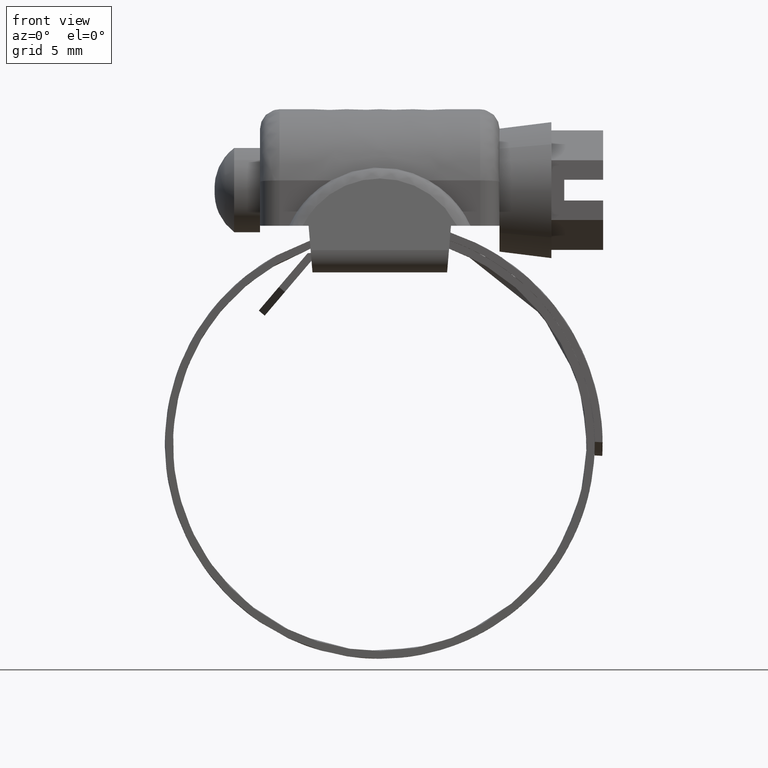
[diagram: clean part render]
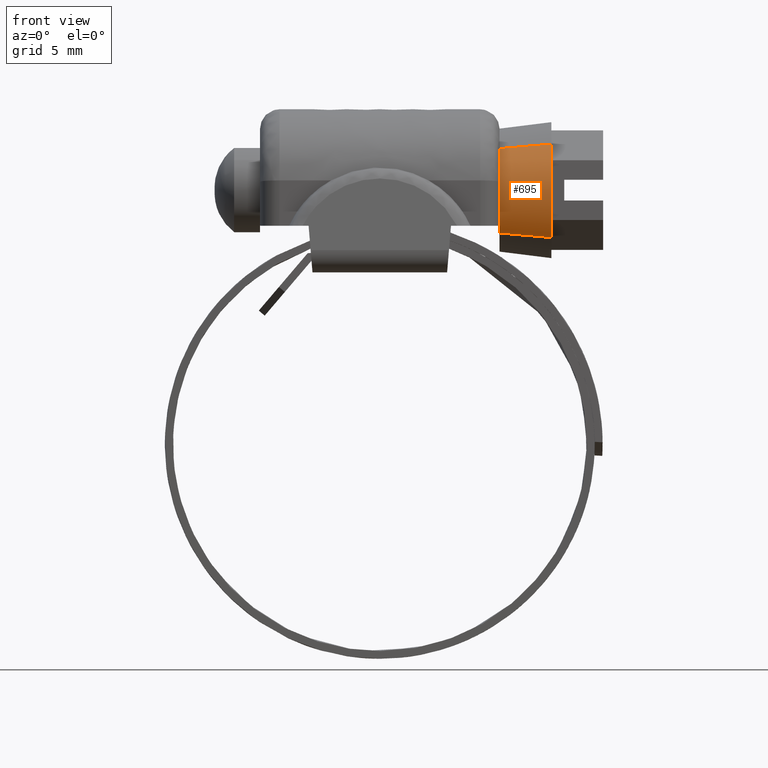
[diagram: same view with one face highlighted and labeled with its STEP entity id]
A machine part, front view. The second image highlights one B-rep face of the part: STEP entity #695.
In plain terms, the highlighted face is a freeform B-spline surface patch.
Its self-contained STEP definition (entity closure, byte-faithful):
#498=CARTESIAN_POINT('',(9.249996914807159,-3.404091709576658,12.514281397179360));
#499=VERTEX_POINT('',#498);
#544=CARTESIAN_POINT('',(9.249998202340631,-3.502067314304929,19.036136426735400));
#545=VERTEX_POINT('',#544);
#556=CARTESIAN_POINT('',(13.250000018486560,-3.870706130698365,19.373931693019468));
#557=VERTEX_POINT('',#556);
#558=CARTESIAN_POINT('',(9.249998202340631,-3.502067314304929,19.036136426735400));
#559=CARTESIAN_POINT('',(13.250000018486560,-3.870706130698365,19.373931693019468));
#560=QUASI_UNIFORM_CURVE('',1,(#558,#559),.UNSPECIFIED.,.F.,.U.);
#561=EDGE_CURVE('',#545,#557,#560,.T.);
#611=CARTESIAN_POINT('',(13.249999981449680,-3.762417494502550,12.165565146685900));
#612=VERTEX_POINT('',#611);
#624=CARTESIAN_POINT('',(9.249996914807159,-3.404091709576658,12.514281397179360));
#625=CARTESIAN_POINT('',(13.249999981449680,-3.762417494502550,12.165565146685900));
#626=QUASI_UNIFORM_CURVE('',1,(#624,#625),.UNSPECIFIED.,.F.,.U.);
#627=EDGE_CURVE('',#499,#612,#626,.T.);
#632=CARTESIAN_POINT('',(9.149999999999999,-3.492851383137962,19.027691608579389));
#633=CARTESIAN_POINT('',(9.150000000000000,-6.515357132425757,15.729205389850874));
#634=CARTESIAN_POINT('',(9.150000000000000,-3.395133980913856,12.522998936050854));
#635=CARTESIAN_POINT('',(13.352499999999999,-3.880152384131030,19.382587589517492));
#636=CARTESIAN_POINT('',(13.352500000000001,-7.237805373824682,15.718352338224150));
#637=CARTESIAN_POINT('',(13.352500000000001,-3.771599694760571,12.156629192548289));
#645=(BOUNDED_SURFACE()B_SPLINE_SURFACE(2,1,((#632,#635),(#633,#636),(#634,#637)),.UNSPECIFIED.,.F.,.F.,.U.)B_SPLINE_SURFACE_WITH_KNOTS((3,3),(2,2),(0.0,8.368627397567105),(0.0,4.235204773403082),.UNSPECIFIED.)GEOMETRIC_REPRESENTATION_ITEM()RATIONAL_B_SPLINE_SURFACE(((1.0,1.0),(0.718822509939086,0.718822509939086),(0.977505800795127,0.977505800795127)))REPRESENTATION_ITEM('')SURFACE());
#646=CARTESIAN_POINT('',(9.250000000000002,-4.749999999999957,15.827083635802561));
#647=VERTEX_POINT('',#646);
#648=CARTESIAN_POINT('',(9.249996914807159,-3.404091709576658,12.514281397179360));
#649=CARTESIAN_POINT('',(9.249997182364304,-3.683831932287177,12.801577535535859));
#650=CARTESIAN_POINT('',(9.249997655075720,-4.065645757893082,13.309163101417949));
#651=CARTESIAN_POINT('',(9.249998346686628,-4.420843120039717,14.051797567488370));
#652=CARTESIAN_POINT('',(9.249999075363869,-4.674577696915335,14.834232620106850));
#653=CARTESIAN_POINT('',(9.249999626556424,-4.750123693726238,15.426089420882301));
#654=CARTESIAN_POINT('',(9.250000000000002,-4.749999999999957,15.827083635802561));
#655=B_SPLINE_CURVE_WITH_KNOTS('',3,(#648,#649,#650,#651,#652,#653,#654),.UNSPECIFIED.,.F.,.U.,(4,1,1,1,4),(4.590436E-009,1.202944929169759,1.890336059375318,2.463165143117132,3.666110067718696),.UNSPECIFIED.);
#656=EDGE_CURVE('',#499,#647,#655,.T.);
#657=ORIENTED_EDGE('',*,*,#656,.F.);
#658=ORIENTED_EDGE('',*,*,#627,.T.);
#659=CARTESIAN_POINT('',(13.250000000000000,-5.249999999999965,15.827083603108489));
#660=VERTEX_POINT('',#659);
#661=CARTESIAN_POINT('',(13.249999981449680,-3.762417494502550,12.165565146685900));
#662=CARTESIAN_POINT('',(13.249999982905241,-4.042141039494772,12.452873576823430));
#663=CARTESIAN_POINT('',(13.249999985376590,-4.418384124261962,12.940659147182840));
#664=CARTESIAN_POINT('',(13.249999989267129,-4.820491274331284,13.708603142842289));
#665=CARTESIAN_POINT('',(13.249999992288449,-5.037992844419820,14.304958389073910));
#666=CARTESIAN_POINT('',(13.249999995937159,-5.205952550341064,15.025138201411821));
#667=CARTESIAN_POINT('',(13.249999998396190,-5.250035811164730,15.510518515610579));
#668=CARTESIAN_POINT('',(13.250000000000000,-5.249999999999965,15.827083603108489));
#669=B_SPLINE_CURVE_WITH_KNOTS('',3,(#661,#662,#663,#664,#665,#666,#667,#668),.UNSPECIFIED.,.F.,.U.,(4,1,1,1,1,4),(2.031400E-009,1.202942442643076,1.836070352963174,2.595822749695228,3.102325090896068,4.052016435302042),.UNSPECIFIED.);
#670=EDGE_CURVE('',#612,#660,#669,.T.);
#671=ORIENTED_EDGE('',*,*,#670,.T.);
#672=CARTESIAN_POINT('',(13.250000000000000,-5.249999999999965,15.827083603108489));
#673=CARTESIAN_POINT('',(13.250000002431550,-5.250149361096568,16.293603234895642));
#674=CARTESIAN_POINT('',(13.250000006342580,-5.149286954401320,17.043970061678639));
#675=CARTESIAN_POINT('',(13.250000011328330,-4.802549490160827,18.000554562514850));
#676=CARTESIAN_POINT('',(13.250000015134191,-4.399674913077484,18.730731898772099));
#677=CARTESIAN_POINT('',(13.250000017395401,-4.062561560785587,19.164591057209520));
#678=CARTESIAN_POINT('',(13.250000018486560,-3.870706130698365,19.373931693019468));
#679=B_SPLINE_CURVE_WITH_KNOTS('',3,(#672,#673,#674,#675,#676,#677,#678),.UNSPECIFIED.,.F.,.U.,(4,1,1,1,4),(2.636368E-009,1.399512505280950,2.251381795919732,3.042412934304429,3.894287142364253),.UNSPECIFIED.);
#680=EDGE_CURVE('',#660,#557,#679,.T.);
#681=ORIENTED_EDGE('',*,*,#680,.T.);
#682=ORIENTED_EDGE('',*,*,#561,.F.);
#683=CARTESIAN_POINT('',(9.250000000000002,-4.749999999999957,15.827083635802561));
#684=CARTESIAN_POINT('',(9.249999763550235,-4.750144194344815,16.249176829061529));
#685=CARTESIAN_POINT('',(9.249999424362315,-4.668727462756479,16.854670863988730));
#686=CARTESIAN_POINT('',(9.249998946130582,-4.381515665683624,17.708375907054620));
#687=CARTESIAN_POINT('',(9.249998569742743,-4.035809170930135,18.380276520631590));
#688=CARTESIAN_POINT('',(9.249998316020291,-3.688048486087954,18.833203645466721));
#689=CARTESIAN_POINT('',(9.249998202340631,-3.502067314304929,19.036136426735400));
#690=B_SPLINE_CURVE_WITH_KNOTS('',3,(#683,#684,#685,#686,#687,#688,#689),.UNSPECIFIED.,.F.,.U.,(4,1,1,1,4),(5.263387E-009,1.266224939687970,1.816751621834613,2.697605600775359,3.523402466879940),.UNSPECIFIED.);
#691=EDGE_CURVE('',#647,#545,#690,.T.);
#692=ORIENTED_EDGE('',*,*,#691,.F.);
#693=EDGE_LOOP('',(#657,#658,#671,#681,#682,#692));
#694=FACE_OUTER_BOUND('',#693,.T.);
#695=ADVANCED_FACE('',(#694),#645,.T.);